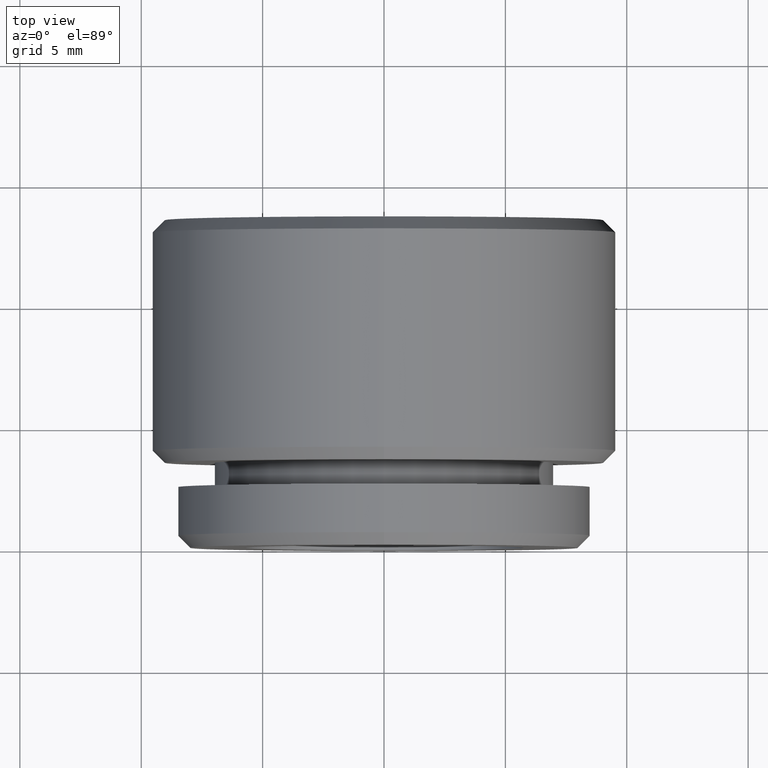
[diagram: clean part render]
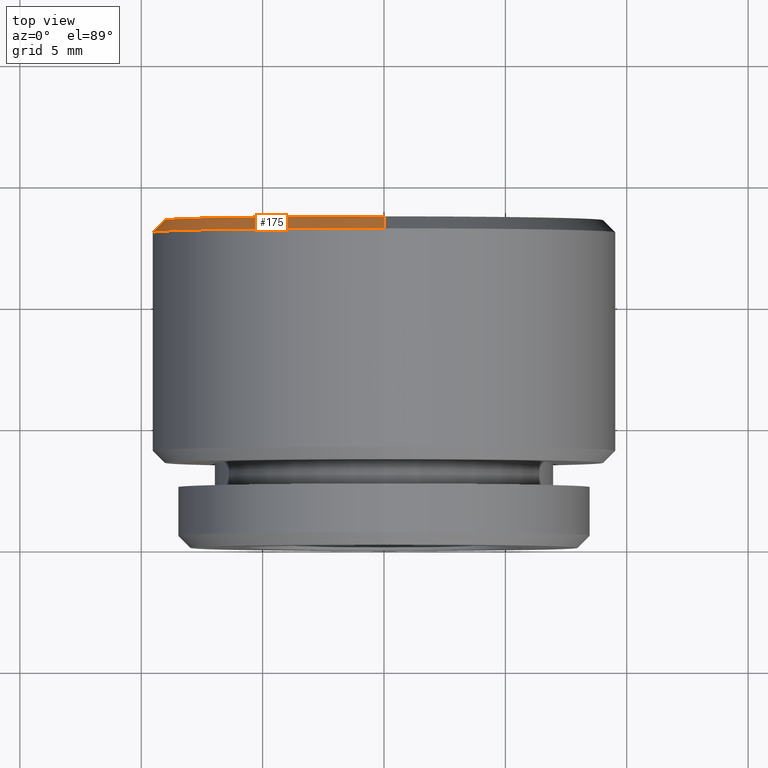
[diagram: same view with one face highlighted and labeled with its STEP entity id]
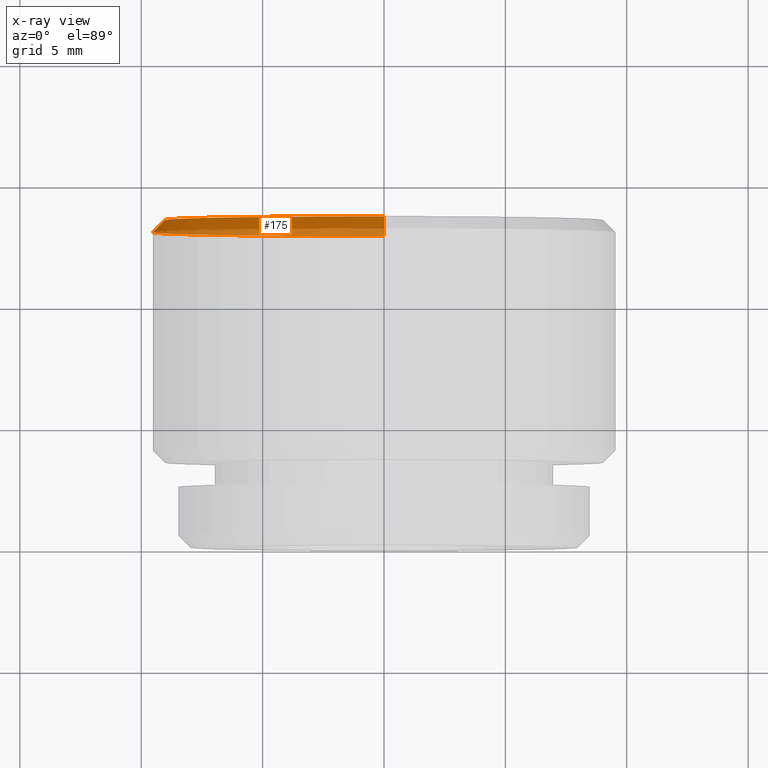
[diagram: x-ray of the same camera — body ghosted, the highlighted face saturated]
A machine part, top view. The second image highlights one B-rep face of the part: STEP entity #175.
The next image is the same camera in x-ray: the body ghosted, the highlighted face saturated — about 35% of this face is hidden behind the body in this view.
In plain terms, the highlighted conical surface has half-angle 45 deg.
Its self-contained STEP definition (entity closure, byte-faithful):
#62 = ORIENTED_EDGE ( 'NONE', *, *, #215, .F. ) ;
#90 = DIRECTION ( 'NONE',  ( 0.0000000000000000000, 0.0000000000000000000, -1.000000000000000000 ) ) ;
#105 = DIRECTION ( 'NONE',  ( 0.0000000000000000000, -0.7071067811865439100, -0.7071067811865512400 ) ) ;
#109 = CARTESIAN_POINT ( 'NONE',  ( 0.0000000000000000000, 12.99999999999999600, 0.0000000000000000000 ) ) ;
#144 = CARTESIAN_POINT ( 'NONE',  ( 1.166476076187854000E-015, 12.99999999999999600, 9.525000000000000400 ) ) ;
#175 = ADVANCED_FACE ( 'NONE', ( #543 ), #403, .T. ) ;
#178 = DIRECTION ( 'NONE',  ( 8.659560562354979700E-017, -0.7071067811865439100, 0.7071067811865512400 ) ) ;
#179 = VERTEX_POINT ( 'NONE', #815 ) ;
#180 = LINE ( 'NONE', #202, #362 ) ;
#194 = CARTESIAN_POINT ( 'NONE',  ( 1.166476076187854000E-015, 12.99999999999999600, 9.525000000000000400 ) ) ;
#202 = CARTESIAN_POINT ( 'NONE',  ( 0.0000000000000000000, 12.99999999999999600, -9.525000000000000400 ) ) ;
#215 = EDGE_CURVE ( 'NONE', #741, #734, #451, .T. ) ;
#244 = ORIENTED_EDGE ( 'NONE', *, *, #673, .F. ) ;
#259 = DIRECTION ( 'NONE',  ( 0.0000000000000000000, 1.000000000000000000, 0.0000000000000000000 ) ) ;
#291 = VERTEX_POINT ( 'NONE', #194 ) ;
#293 = CARTESIAN_POINT ( 'NONE',  ( 0.0000000000000000000, 13.49999999999999800, -9.024999999999993200 ) ) ;
#294 = CIRCLE ( 'NONE', #744, 9.525000000000000400 ) ;
#300 = DIRECTION ( 'NONE',  ( -0.0000000000000000000, -1.000000000000000000, -0.0000000000000000000 ) ) ;
#349 = EDGE_CURVE ( 'NONE', #741, #179, #180, .T. ) ;
#362 = VECTOR ( 'NONE', #105, 1000.000000000000000 ) ;
#403 = CONICAL_SURFACE ( 'NONE', #583, 9.525000000000000400, 0.7853981633974533900 ) ;
#451 = CIRCLE ( 'NONE', #674, 9.024999999999993200 ) ;
#492 = ORIENTED_EDGE ( 'NONE', *, *, #349, .T. ) ;
#502 = DIRECTION ( 'NONE',  ( -0.0000000000000000000, -1.000000000000000000, -0.0000000000000000000 ) ) ;
#530 = LINE ( 'NONE', #144, #724 ) ;
#535 = EDGE_LOOP ( 'NONE', ( #813, #62, #492, #244 ) ) ;
#536 = CARTESIAN_POINT ( 'NONE',  ( 1.135859906209169800E-015, 13.49999999999999800, 9.024999999999993200 ) ) ;
#543 = FACE_OUTER_BOUND ( 'NONE', #535, .T. ) ;
#553 = CARTESIAN_POINT ( 'NONE',  ( 0.0000000000000000000, 12.99999999999999600, 0.0000000000000000000 ) ) ;
#583 = AXIS2_PLACEMENT_3D ( 'NONE', #109, #502, #90 ) ;
#595 = CARTESIAN_POINT ( 'NONE',  ( 0.0000000000000000000, 13.49999999999999800, 0.0000000000000000000 ) ) ;
#673 = EDGE_CURVE ( 'NONE', #291, #179, #294, .T. ) ;
#674 = AXIS2_PLACEMENT_3D ( 'NONE', #595, #259, #853 ) ;
#724 = VECTOR ( 'NONE', #178, 1000.000000000000000 ) ;
#734 = VERTEX_POINT ( 'NONE', #536 ) ;
#741 = VERTEX_POINT ( 'NONE', #293 ) ;
#744 = AXIS2_PLACEMENT_3D ( 'NONE', #553, #300, #800 ) ;
#754 = EDGE_CURVE ( 'NONE', #734, #291, #530, .T. ) ;
#800 = DIRECTION ( 'NONE',  ( 0.0000000000000000000, 0.0000000000000000000, 1.000000000000000000 ) ) ;
#813 = ORIENTED_EDGE ( 'NONE', *, *, #754, .F. ) ;
#815 = CARTESIAN_POINT ( 'NONE',  ( 0.0000000000000000000, 12.99999999999999600, -9.525000000000000400 ) ) ;
#853 = DIRECTION ( 'NONE',  ( 0.0000000000000000000, 0.0000000000000000000, 1.000000000000000000 ) ) ;